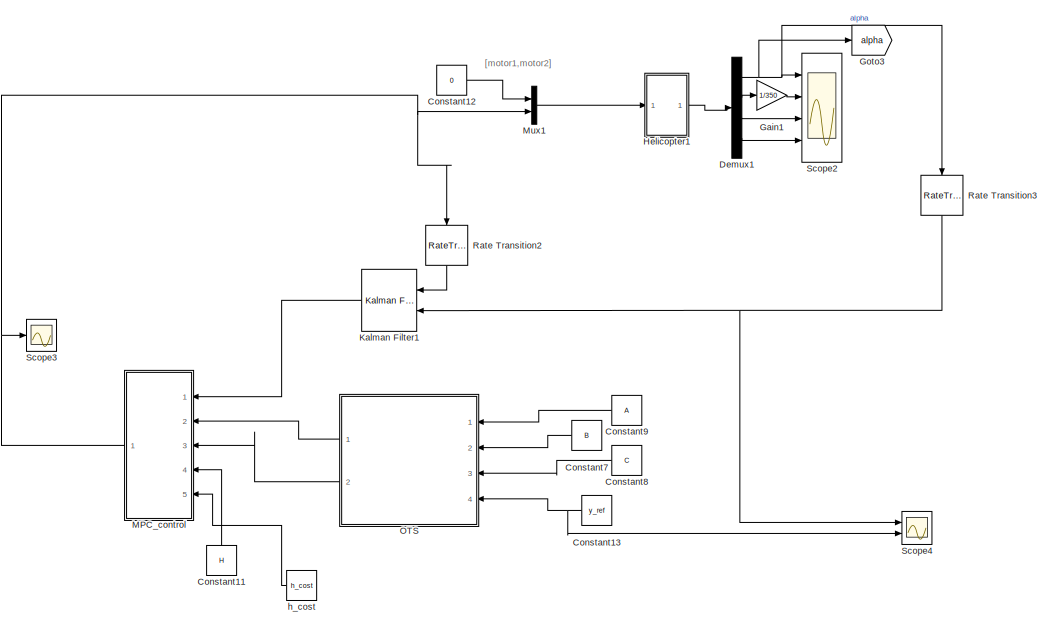
[diagram: root canvas - part 1/2, right side, full height]
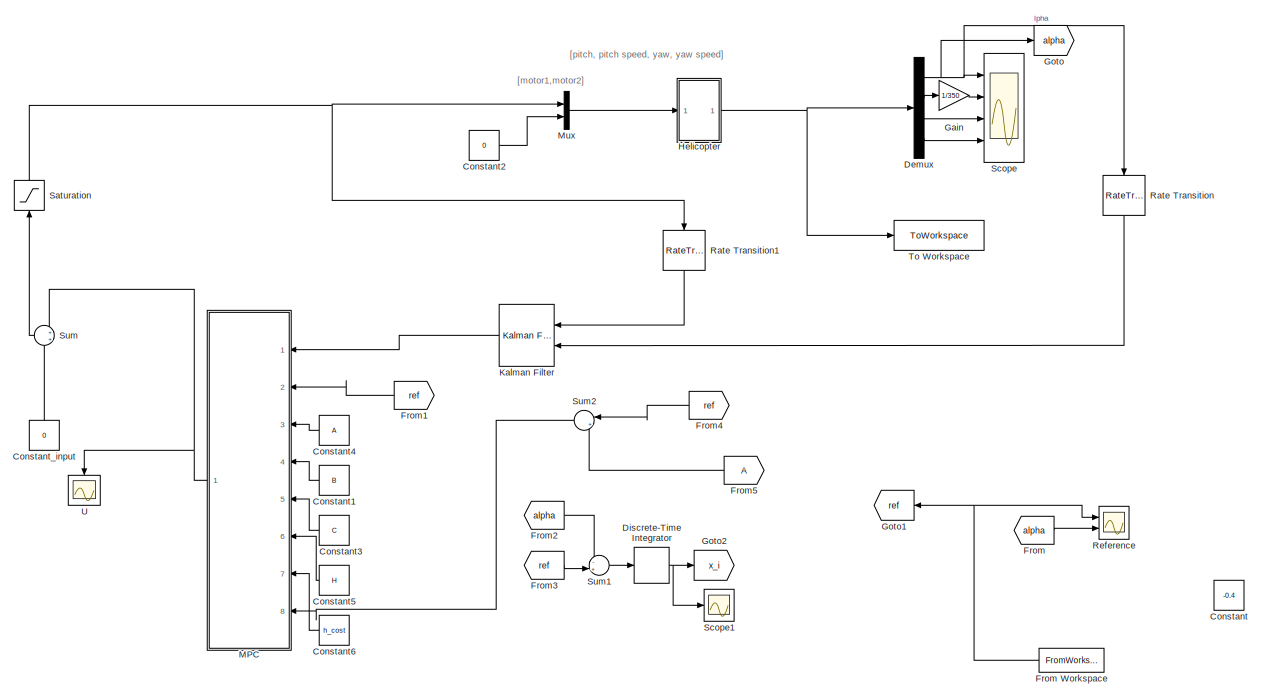
[diagram: root canvas - part 2/2, left side, full height]
MODEL slx_0153013b2ee6
KIND model
CONFIG AbsTol = auto
CONFIG EnableMultiTasking = off
CONFIG FixedStep = auto
CONFIG InitFcn = hwinit
CONFIG MaxStep = auto
CONFIG MinStep = auto
CONFIG RelTol = 1e-3
CONFIG SampleTimeConstraint = Unconstrained
CONFIG SolverName = ode45
CONFIG StartTime = 0.0
CONFIG StopTime = Tsim
BLOCK [Constant] Constant
  Commented = on
  NameLocation = right
  Value = -0.4
BLOCK [Constant] Constant1
  Commented = on
  NameLocation = top
  Value = B
  VectorParams1D = off
BLOCK [Constant] Constant11
  NameLocation = right
  Value = H
BLOCK [Constant] Constant12
  Value = 0
BLOCK [Constant] Constant13
  NameLocation = top
  Value = y_ref
BLOCK [Constant] Constant2
  Commented = on
  Value = 0
BLOCK [Constant] Constant3
  Commented = on
  NameLocation = top
  Value = C
  VectorParams1D = off
BLOCK [Constant] Constant4
  Commented = on
  NameLocation = top
  Value = A
BLOCK [Constant] Constant5
  Commented = on
  NameLocation = top
  Value = H
BLOCK [Constant] Constant6
  Commented = on
  NameLocation = top
  Value = h_cost
BLOCK [Constant] Constant7
  NameLocation = top
  Value = B
  VectorParams1D = off
BLOCK [Constant] Constant8
  NameLocation = top
  Value = C
  VectorParams1D = off
BLOCK [Constant] Constant9
  NameLocation = top
  Value = A
BLOCK [Constant] Constant_input
  Commented = on
  Value = 0
BLOCK [Demux] Demux
  Commented = on
  Ports = [1, 4]
BLOCK [Demux] Demux1
  Ports = [1, 4]
BLOCK [DiscreteIntegrator] Discrete-Time Integrator
  Commented = on
  ICPrevOutput = DiscIntNeverNeededParam
  ICPrevScaledInput = DiscIntNeverNeededParam
  InitialConditionSetting = Auto
  Ports = [1, 1]
  SampleTime = -1
BLOCK [From] From
  Commented = on
  GotoTag = alpha
BLOCK [FromWorkspace] From Workspace
  Commented = on
  NameLocation = top
  VariableName = simin
BLOCK [From] From1
  Commented = on
  GotoTag = ref
  NameLocation = top
BLOCK [From] From2
  Commented = on
  GotoTag = alpha
BLOCK [From] From3
  Commented = on
  GotoTag = ref
BLOCK [From] From4
  Commented = on
  GotoTag = ref
  NameLocation = top
BLOCK [From] From5
  Commented = on
  NameLocation = top
BLOCK [Gain] Gain
  Commented = on
  Gain = 1/350
BLOCK [Gain] Gain1
  Gain = 1/350
BLOCK [Goto] Goto
  Commented = on
  GotoTag = alpha
BLOCK [Goto] Goto1
  Commented = on
  GotoTag = ref
  NameLocation = top
BLOCK [Goto] Goto2
  Commented = on
  GotoTag = x_i
BLOCK [Goto] Goto3
  GotoTag = alpha
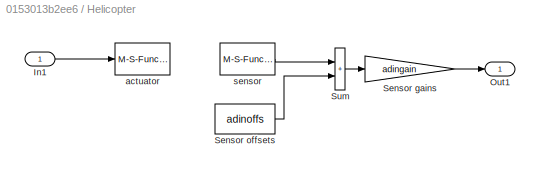
BLOCK [SubSystem] Helicopter
  Commented = on
  Ports = [1, 1]
  RequestExecContextInheritance = off
BLOCK [Inport] Helicopter/In1
BLOCK [Outport] Helicopter/Out1
BLOCK [Gain] Helicopter/Sensor gains
  Gain = adingain
BLOCK [Constant] Helicopter/Sensor offsets
  Value = adinoffs
BLOCK [Sum] Helicopter/Sum
  IconShape = rectangular
  Ports = [2, 1]
BLOCK [M-S-Function] Helicopter/actuator
  FunctionName = sf_heli_out
  Parameters = HeliMexHandle,Ts
  Ports = [1]
BLOCK [M-S-Function] Helicopter/sensor
  FunctionName = sf_heli_in
  Parameters = HeliMexHandle
  Ports = [0, 1]
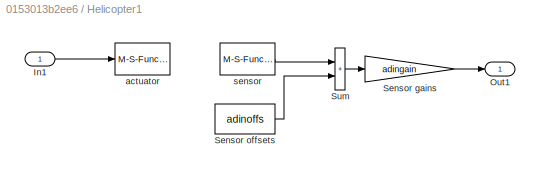
BLOCK [SubSystem] Helicopter1
  Ports = [1, 1]
  RequestExecContextInheritance = off
BLOCK [Inport] Helicopter1/In1
BLOCK [Outport] Helicopter1/Out1
BLOCK [Gain] Helicopter1/Sensor gains
  Gain = adingain
BLOCK [Constant] Helicopter1/Sensor offsets
  Value = adinoffs
BLOCK [Sum] Helicopter1/Sum
  IconShape = rectangular
  Ports = [2, 1]
BLOCK [M-S-Function] Helicopter1/actuator
  FunctionName = sf_heli_out
  Parameters = HeliMexHandle,Ts
  Ports = [1]
BLOCK [M-S-Function] Helicopter1/sensor
  FunctionName = sf_heli_in
  Parameters = HeliMexHandle
  Ports = [0, 1]
BLOCK [Reference] Kalman Filter  REF=ctrlSharedLib/Kalman Filter
  Commented = on
  NameLocation = top
  Ports = [2, 1]
  SourceBlock = ctrlSharedLib/Kalman Filter
  SourceProductBaseCode = CT,ID
  SourceType = ctrlKalmanFilter
BLOCK [Reference] Kalman Filter1  REF=ctrlSharedLib/Kalman Filter
  NameLocation = top
  Ports = [2, 1]
  SourceBlock = ctrlSharedLib/Kalman Filter
  SourceProductBaseCode = CT,ID
  SourceType = ctrlKalmanFilter
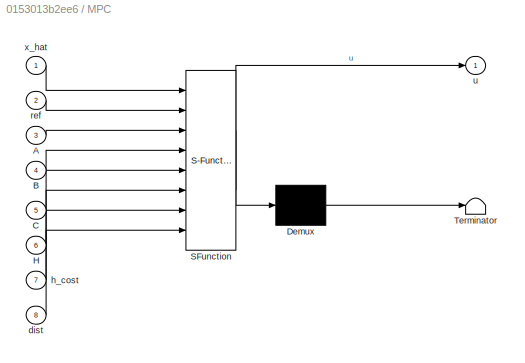
BLOCK [SubSystem] MPC
  Commented = on
  ErrorFcn = Stateflow.Translate.translate
  NameLocation = top
  PermitHierarchicalResolution = ExplicitOnly
  Ports = [8, 1]
  RequestExecContextInheritance = off
  SFBlockType = MATLAB Function
  TreatAsAtomicUnit = on
BLOCK [Demux] MPC/ Demux 
  Outputs = 1
  Ports = [1, 1]
BLOCK [S-Function] MPC/ SFunction 
  EnableBusSupport = on
  FunctionName = sf_sfun
  PortCounts = [8 2]
  Ports = [8, 2]
  SFcnIsStateOwnerBlock = off
  SFunctionDeploymentMode = off
  Tag = Stateflow S-Function 2
BLOCK [Terminator] MPC/ Terminator 
BLOCK [Inport] MPC/A
  Port = 3
BLOCK [Inport] MPC/B
  Port = 4
BLOCK [Inport] MPC/C
  Port = 5
BLOCK [Inport] MPC/H
  Port = 6
BLOCK [Inport] MPC/dist
  Port = 8
BLOCK [Inport] MPC/h_cost
  Port = 7
BLOCK [Inport] MPC/ref
  Port = 2
BLOCK [Outport] MPC/u
BLOCK [Inport] MPC/x_hat
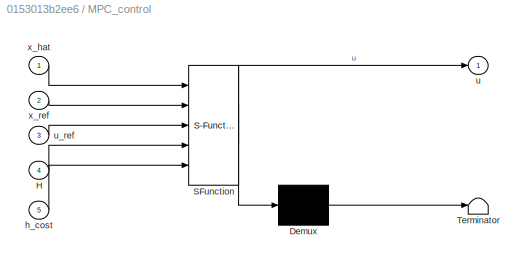
BLOCK [SubSystem] MPC_control
  ErrorFcn = Stateflow.Translate.translate
  NameLocation = top
  PermitHierarchicalResolution = ExplicitOnly
  Ports = [5, 1]
  RequestExecContextInheritance = off
  SFBlockType = MATLAB Function
  TreatAsAtomicUnit = on
BLOCK [Demux] MPC_control/ Demux 
  Outputs = 1
  Ports = [1, 1]
BLOCK [S-Function] MPC_control/ SFunction 
  EnableBusSupport = on
  FunctionName = sf_sfun
  PortCounts = [5 2]
  Ports = [5, 2]
  SFcnIsStateOwnerBlock = off
  SFunctionDeploymentMode = off
  Tag = Stateflow S-Function 1
BLOCK [Terminator] MPC_control/ Terminator 
BLOCK [Inport] MPC_control/H
  Port = 4
BLOCK [Inport] MPC_control/h_cost
  Port = 5
BLOCK [Outport] MPC_control/u
BLOCK [Inport] MPC_control/u_ref
  Port = 3
BLOCK [Inport] MPC_control/x_hat
BLOCK [Inport] MPC_control/x_ref
  Port = 2
BLOCK [Mux] Mux
  Commented = on
  DisplayOption = bar
  Inputs = 2
  Ports = [2, 1]
BLOCK [Mux] Mux1
  DisplayOption = bar
  Inputs = 2
  Ports = [2, 1]
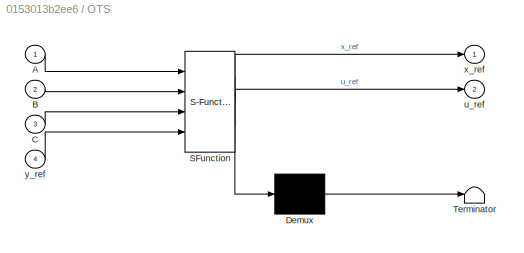
BLOCK [SubSystem] OTS
  ErrorFcn = Stateflow.Translate.translate
  NameLocation = top
  PermitHierarchicalResolution = ExplicitOnly
  Ports = [4, 2]
  RequestExecContextInheritance = off
  SFBlockType = MATLAB Function
  TreatAsAtomicUnit = on
BLOCK [Demux] OTS/ Demux 
  Outputs = 1
  Ports = [1, 1]
BLOCK [S-Function] OTS/ SFunction 
  EnableBusSupport = on
  FunctionName = sf_sfun
  PortCounts = [4 3]
  Ports = [4, 3]
  SFcnIsStateOwnerBlock = off
  SFunctionDeploymentMode = off
  Tag = Stateflow S-Function 3
BLOCK [Terminator] OTS/ Terminator 
BLOCK [Inport] OTS/A
BLOCK [Inport] OTS/B
  Port = 2
BLOCK [Inport] OTS/C
  Port = 3
BLOCK [Outport] OTS/u_ref
  Port = 2
BLOCK [Outport] OTS/x_ref
BLOCK [Inport] OTS/y_ref
  Port = 4
BLOCK [RateTransition] Rate Transition
  Commented = on
  NameLocation = left
  OutPortSampleTime = h
BLOCK [RateTransition] Rate Transition1
  Commented = on
  NameLocation = left
  OutPortSampleTime = h
BLOCK [RateTransition] Rate Transition2
  NameLocation = left
  OutPortSampleTime = h
BLOCK [RateTransition] Rate Transition3
  NameLocation = left
  OutPortSampleTime = h
BLOCK [Scope] Reference
  Commented = on
  Floating = off
  NumInputPorts = 2
  Ports = [2]
  ScopeSpecificationString = Simulink.scopes.TimeScopeBlockCfg('CurrentConfiguration', extmgr.ConfigurationSet(extmgr.Configuration('Core','General UI',true),extmgr.Configuration('Core','Source UI',true),extmgr.Configuration('Sources','WiredSimulink',true,'DataLoggingVariableName','ScopeData1'),extmgr.Configuration('Visuals','Time Domain',true,'SerializedDisplays',{struct('MinYLimReal','-0.41993','MaxYLimReal','0.09779','YLab...<+1432ch>
BLOCK [Saturate] Saturation
  Commented = on
  LowerLimit = -1
  NameLocation = right
  UpperLimit = 1
BLOCK [Scope] Scope
  Commented = on
  Floating = off
  NumInputPorts = 4
  Ports = [4]
  ScopeSpecificationString = Simulink.scopes.TimeScopeBlockCfg('CurrentConfiguration', extmgr.ConfigurationSet(extmgr.Configuration('Core','General UI',true),extmgr.Configuration('Core','Source UI',true),extmgr.Configuration('Sources','WiredSimulink',true,'DataLogging',true,'DataLoggingVariableName','y','DataLoggingSaveFormat','StructureWithTime','DataLoggingDecimation','1','DataLoggingDecimateData',true),extmgr.Configuration...<+3679ch>
BLOCK [Scope] Scope1
  Commented = on
  Floating = off
  NumInputPorts = 1
  Ports = [1]
  ScopeSpecificationString = Simulink.scopes.TimeScopeBlockCfg('CurrentConfiguration', extmgr.ConfigurationSet(extmgr.Configuration('Core','General UI',true),extmgr.Configuration('Core','Source UI',true),extmgr.Configuration('Sources','WiredSimulink',true,'DataLoggingVariableName','ScopeData2'),extmgr.Configuration('Visuals','Time Domain',true),extmgr.Configuration('Tools','Plot Navigation',true),extmgr.Configuration('Tools',...<+40ch>
BLOCK [Scope] Scope2
  Floating = off
  NumInputPorts = 4
  Ports = [4]
  ScopeSpecificationString = Simulink.scopes.TimeScopeBlockCfg('CurrentConfiguration', extmgr.ConfigurationSet(extmgr.Configuration('Core','General UI',true),extmgr.Configuration('Core','Source UI',true),extmgr.Configuration('Sources','WiredSimulink',true,'DataLogging',true,'DataLoggingVariableName','ScopeData1','DataLoggingSaveFormat','StructureWithTime','DataLoggingDecimation','1','DataLoggingDecimateData',true),extmgr.Conf...<+3688ch>
BLOCK [Scope] Scope3
  Floating = off
  NumInputPorts = 1
  Ports = [1]
  ScopeSpecificationString = Simulink.scopes.TimeScopeBlockCfg('CurrentConfiguration', extmgr.ConfigurationSet(extmgr.Configuration('Core','General UI',true),extmgr.Configuration('Core','Source UI',true),extmgr.Configuration('Sources','WiredSimulink',true,'DataLoggingVariableName','ScopeData2'),extmgr.Configuration('Visuals','Time Domain',true),extmgr.Configuration('Tools','Plot Navigation',true),extmgr.Configuration('Tools',...<+40ch>
BLOCK [Scope] Scope4
  Floating = off
  NumInputPorts = 2
  Ports = [2]
  ScopeSpecificationString = Simulink.scopes.TimeScopeBlockCfg('CurrentConfiguration', extmgr.ConfigurationSet(extmgr.Configuration('Core','General UI',true),extmgr.Configuration('Core','Source UI',true),extmgr.Configuration('Sources','WiredSimulink',true,'DataLoggingVariableName','ScopeData3'),extmgr.Configuration('Visuals','Time Domain',true,'SerializedDisplays',{struct('MinYLimReal','-0.3438','MaxYLimReal','0.07229','YLabe...<+1410ch>
BLOCK [Sum] Sum
  Commented = on
  NameLocation = top
  Ports = [2, 1]
BLOCK [Sum] Sum1
  Commented = on
  Inputs = -+|
  Ports = [2, 1]
BLOCK [Sum] Sum2
  Commented = on
  Inputs = |+-
  NameLocation = top
  Ports = [2, 1]
BLOCK [ToWorkspace] To Workspace
  Commented = on
  FixptAsFi = on
  MaxDataPoints = inf
  Ports = [1]
  SampleTime = -1
  SaveFormat = Structure With Time
  VariableName = simout
BLOCK [Scope] U
  Commented = on
  Floating = off
  NameLocation = left
  NumInputPorts = 1
  Ports = [1]
  ScopeSpecificationString = Simulink.scopes.TimeScopeBlockCfg('CurrentConfiguration', extmgr.ConfigurationSet(extmgr.Configuration('Core','General UI',true),extmgr.Configuration('Core','Source UI',true),extmgr.Configuration('Sources','WiredSimulink',true,'DataLoggingVariableName','ScopeData2'),extmgr.Configuration('Visuals','Time Domain',true,'SerializedDisplays',{struct('MinYLimReal','-1.125','MaxYLimReal','0.125','YLabelRe...<+1444ch>
BLOCK [Constant] h_cost
  NameLocation = top
  Value = h_cost
ANNOTATION (root): [motor1,motor2]
ANNOTATION (root): [pitch, pitch speed, yaw, yaw speed]
LINE Constant11:1 -> MPC_control:4
LINE Constant12:1 -> Mux1:1
NET Constant13:1 -> OTS:4, Scope4:2
LINE Constant1:1 -> MPC:4
LINE Constant2:1 -> Mux:2
LINE Constant3:1 -> MPC:5
LINE Constant4:1 -> MPC:3
LINE Constant5:1 -> MPC:6
LINE Constant6:1 -> MPC:7
LINE Constant7:1 -> OTS:2
LINE Constant8:1 -> OTS:3
LINE Constant9:1 -> OTS:1
LINE Constant_input:1 -> Sum:2
NET Demux1:1 -> Goto3:1, Rate Transition3:1, Scope2:1
LINE Demux1:2 -> Gain1:1
LINE Demux1:3 -> Scope2:3
LINE Demux1:4 -> Scope2:4
NET Demux:1 -> Goto:1, Rate Transition:1, Scope:1
LINE Demux:2 -> Gain:1
LINE Demux:3 -> Scope:3
LINE Demux:4 -> Scope:4
NET Discrete-Time Integrator:1 -> Goto2:1, Scope1:1
NET From Workspace:1 -> Goto1:1, Reference:1
LINE From1:1 -> MPC:2
LINE From2:1 -> Sum1:1
LINE From3:1 -> Sum1:2
LINE From4:1 -> Sum2:1
LINE From5:1 -> Sum2:2
LINE From:1 -> Reference:2
LINE Gain1:1 -> Scope2:2
LINE Gain:1 -> Scope:2
LINE Helicopter/In1:1 -> Helicopter/actuator:1
LINE Helicopter/Sensor gains:1 -> Helicopter/Out1:1
LINE Helicopter/Sensor offsets:1 -> Helicopter/Sum:2
LINE Helicopter/Sum:1 -> Helicopter/Sensor gains:1
LINE Helicopter/sensor:1 -> Helicopter/Sum:1
LINE Helicopter1/In1:1 -> Helicopter1/actuator:1
LINE Helicopter1/Sensor gains:1 -> Helicopter1/Out1:1
LINE Helicopter1/Sensor offsets:1 -> Helicopter1/Sum:2
LINE Helicopter1/Sum:1 -> Helicopter1/Sensor gains:1
LINE Helicopter1/sensor:1 -> Helicopter1/Sum:1
LINE Helicopter1:1 -> Demux1:1
NET Helicopter:1 -> Demux:1, To Workspace:1
LINE Kalman Filter1:1 -> MPC_control:1
LINE Kalman Filter:1 -> MPC:1
NET MPC:1 -> Sum:1, U:1
NET MPC_control:1 -> Mux1:2, Rate Transition2:1, Scope3:1
LINE Mux1:1 -> Helicopter1:1
LINE Mux:1 -> Helicopter:1
LINE OTS:1 -> MPC_control:2
LINE OTS:2 -> MPC_control:3
LINE Rate Transition1:1 -> Kalman Filter:1
LINE Rate Transition2:1 -> Kalman Filter1:1
NET Rate Transition3:1 -> Kalman Filter1:2, Scope4:1
LINE Rate Transition:1 -> Kalman Filter:2
NET Saturation:1 -> Mux:1, Rate Transition1:1
LINE Sum1:1 -> Discrete-Time Integrator:1
LINE Sum2:1 -> MPC:8
LINE Sum:1 -> Saturation:1
LINE h_cost:1 -> MPC_control:5
note: NET lines group one-source signal fan-out (src -> all destinations, sorted); 1:1 wires keep LINE
CHART MPC_control states=1 transitions=1
  STATE_LABEL 'eML_blk_kernel()'
  STATE_LABEL "SCRIPT:\nfunction u = fcn(x_hat, x_ref, u_ref, H, h_cost)\n    u = 0;\n    coder.extrinsic('quadprog');\n    coder.extrinsic('warning');\n\n    x_0=x_hat;\n    N = 10;\n    lb = -1*ones(N,1);\n    ub = -1*lb;\n    options = optimset('Display', 'off');\n    warning('off', 'all');\n    uN = quadprog(H,(h_cost*[x_0; x_ref; u_ref]),[],[],[],[],lb,ub,[],options);\n    % Select the first input only\n    warning('on',...<+29ch>"
CHART MPC states=1 transitions=1
  STATE_LABEL 'eML_blk_kernel()'
  STATE_LABEL "SCRIPT:\nfunction u = fcn(x_hat, ref , A, B, C, H, h_cost, dist)\n      \n    u = zeros(1,1); % Define the output type for the extrinsic call.\n    \n    N = 20; %prediction horizon\n    coder.extrinsic('quadprog');\n%     A_OT = [eye(2)-A, -B; C, zeros(1,1)];\n%     disp(size(A_OT))\n%     B_OT = [zeros(2,1); ref];\n%     \n%     H_ots = [0 0 0;\n%              0 0 0;\n%              0 0 1];\n%     \n%     lb_o...<+609ch>"
CHART OTS states=1 transitions=1
  STATE_LABEL 'eML_blk_kernel()'
  STATE_LABEL "SCRIPT:\nfunction [x_ref, u_ref] = fcn(A, B, C, y_ref)\n    x_ref = [0; 0];\n    u_ref = [0];\n    coder.extrinsic('quadprog');\n    coder.extrinsic('warning');\n\n    A_OT = [eye(2)-A, -B; C, 0];\n    B_OT = [zeros(2,1); y_ref];\n    \n    H_ots = [0 0 0;\n             0 0 0;\n             0 0 1];\n    \n    lb_ots = [-10000; 0; -1];\n    ub_ots = -lb_ots;\n    \n    options = optimset('Display', 'on');\n    OTS =...<+102ch>"
CHART  states=0 transitions=0
CHART  states=0 transitions=0
CHART  states=0 transitions=0
